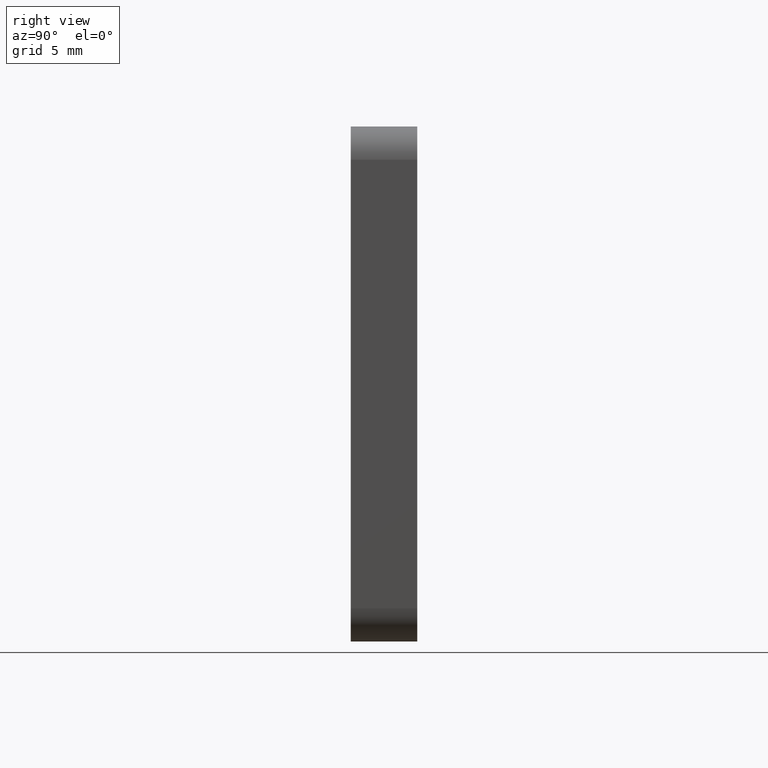
[diagram: clean part render]
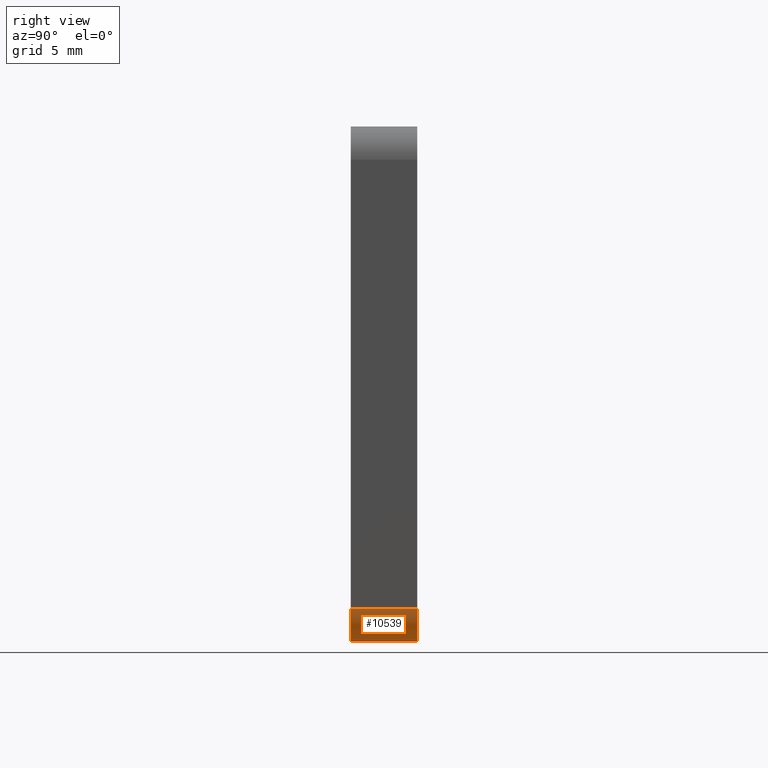
[diagram: same view with one face highlighted and labeled with its STEP entity id]
A machine part, right view. The second image highlights one B-rep face of the part: STEP entity #10539.
In plain terms, the highlighted cylindrical surface (edge-blend (fillet) strip) has radius 2 mm, axis along (0, -1, 0).
Its self-contained STEP definition (entity closure, byte-faithful):
#78 = CARTESIAN_POINT ( 'NONE',  ( 15.50000000000000178, 4.000000000000000000, -13.50000000000000000 ) ) ;
#580 = CIRCLE ( 'NONE', #15082, 2.000000000000000000 ) ;
#648 = AXIS2_PLACEMENT_3D ( 'NONE', #11340, #2387, #1194 ) ;
#730 = EDGE_CURVE ( 'NONE', #1103, #6801, #580, .T. ) ;
#963 = DIRECTION ( 'NONE',  ( 0.000000000000000000, 0.000000000000000000, 1.000000000000000000 ) ) ;
#1103 = VERTEX_POINT ( 'NONE', #11251 ) ;
#1194 = DIRECTION ( 'NONE',  ( 0.000000000000000000, 0.000000000000000000, 1.000000000000000000 ) ) ;
#1487 = EDGE_CURVE ( 'NONE', #15090, #11821, #15870, .T. ) ;
#1708 = VECTOR ( 'NONE', #10749, 1000.000000000000000 ) ;
#2387 = DIRECTION ( 'NONE',  ( -0.000000000000000000, -1.000000000000000000, -0.000000000000000000 ) ) ;
#3535 = CARTESIAN_POINT ( 'NONE',  ( 13.50000000000000178, 4.000000000000000000, -15.50000000000000000 ) ) ;
#3709 = AXIS2_PLACEMENT_3D ( 'NONE', #16543, #8852, #15086 ) ;
#4104 = FACE_OUTER_BOUND ( 'NONE', #6023, .T. ) ;
#4489 = DIRECTION ( 'NONE',  ( 0.000000000000000000, -1.000000000000000000, 0.000000000000000000 ) ) ;
#4728 = CARTESIAN_POINT ( 'NONE',  ( 13.50000000000000178, 4.000000000000000000, -13.50000000000000000 ) ) ;
#4987 = ORIENTED_EDGE ( 'NONE', *, *, #730, .F. ) ;
#5195 = ORIENTED_EDGE ( 'NONE', *, *, #16361, .F. ) ;
#6023 = EDGE_LOOP ( 'NONE', ( #4987, #8801, #7954, #5195 ) ) ;
#6801 = VERTEX_POINT ( 'NONE', #3535 ) ;
#7822 = VECTOR ( 'NONE', #4489, 1000.000000000000000 ) ;
#7954 = ORIENTED_EDGE ( 'NONE', *, *, #1487, .F. ) ;
#8295 = EDGE_CURVE ( 'NONE', #11821, #1103, #10986, .T. ) ;
#8559 = DIRECTION ( 'NONE',  ( 0.000000000000000000, 1.000000000000000000, 0.000000000000000000 ) ) ;
#8801 = ORIENTED_EDGE ( 'NONE', *, *, #8295, .F. ) ;
#8852 = DIRECTION ( 'NONE',  ( 0.000000000000000000, -1.000000000000000000, 0.000000000000000000 ) ) ;
#10020 = CARTESIAN_POINT ( 'NONE',  ( 15.50000000000000178, 0.000000000000000000, -13.50000000000000000 ) ) ;
#10539 = ADVANCED_FACE ( 'NONE', ( #4104 ), #13173, .T. ) ;
#10749 = DIRECTION ( 'NONE',  ( -0.000000000000000000, 1.000000000000000000, -0.000000000000000000 ) ) ;
#10986 = LINE ( 'NONE', #78, #1708 ) ;
#11251 = CARTESIAN_POINT ( 'NONE',  ( 15.50000000000000178, 4.000000000000000000, -13.50000000000000000 ) ) ;
#11340 = CARTESIAN_POINT ( 'NONE',  ( 13.50000000000000178, 0.000000000000000000, -13.50000000000000000 ) ) ;
#11821 = VERTEX_POINT ( 'NONE', #10020 ) ;
#12247 = LINE ( 'NONE', #15956, #7822 ) ;
#13173 = CYLINDRICAL_SURFACE ( 'NONE', #3709, 2.000000000000000000 ) ;
#15082 = AXIS2_PLACEMENT_3D ( 'NONE', #4728, #8559, #963 ) ;
#15086 = DIRECTION ( 'NONE',  ( 0.000000000000000000, 0.000000000000000000, -1.000000000000000000 ) ) ;
#15090 = VERTEX_POINT ( 'NONE', #15110 ) ;
#15110 = CARTESIAN_POINT ( 'NONE',  ( 13.50000000000000178, 0.000000000000000000, -15.50000000000000000 ) ) ;
#15870 = CIRCLE ( 'NONE', #648, 2.000000000000000000 ) ;
#15956 = CARTESIAN_POINT ( 'NONE',  ( 13.50000000000000178, 4.000000000000000000, -15.50000000000000000 ) ) ;
#16361 = EDGE_CURVE ( 'NONE', #6801, #15090, #12247, .T. ) ;
#16543 = CARTESIAN_POINT ( 'NONE',  ( 13.50000000000000178, 4.000000000000000000, -13.50000000000000000 ) ) ;